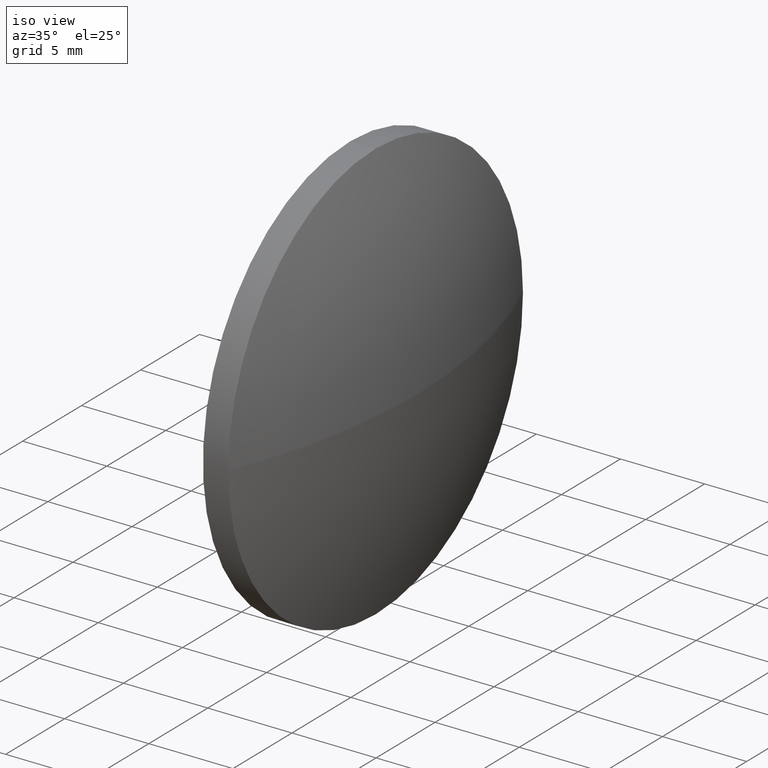
[diagram: clean part render]
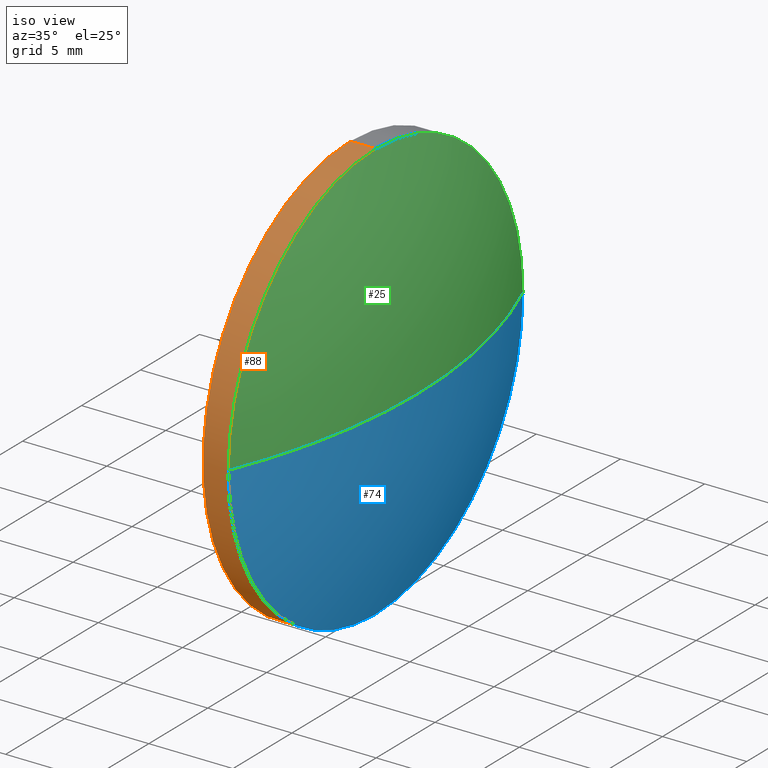
[diagram: same view with three faces highlighted in distinct colors, each labeled with its STEP entity id]
A machine part, iso view with three faces highlighted in distinct colors.
Their STEP definitions:

[orange] entity #88 — the highlighted cylindrical surface (partial cylindrical patch) has radius 12.5 mm, axis along (-1, -0, -0).
#1 = AXIS2_PLACEMENT_3D ( 'NONE', #147, #84, #47 ) ;
#3 = ORIENTED_EDGE ( 'NONE', *, *, #12, .F. ) ;
#4 = VECTOR ( 'NONE', #179, 1000.000000000000000 ) ;
#7 = CARTESIAN_POINT ( 'NONE',  ( 549.6628150025262600, 7.574565257038786500, -12.50000000000000000 ) ) ;
#10 = AXIS2_PLACEMENT_3D ( 'NONE', #67, #163, #97 ) ;
#12 = EDGE_CURVE ( 'NONE', #176, #143, #101, .T. ) ;
#15 = VERTEX_POINT ( 'NONE', #133 ) ;
#21 = EDGE_CURVE ( 'NONE', #27, #120, #156, .T. ) ;
#27 = VERTEX_POINT ( 'NONE', #62 ) ;
#32 = ORIENTED_EDGE ( 'NONE', *, *, #168, .F. ) ;
#33 = DIRECTION ( 'NONE',  ( 0.0000000000000000000, 0.0000000000000000000, 1.000000000000000000 ) ) ;
#41 = AXIS2_PLACEMENT_3D ( 'NONE', #99, #113, #33 ) ;
#46 = EDGE_CURVE ( 'NONE', #176, #27, #140, .T. ) ;
#47 = DIRECTION ( 'NONE',  ( 0.0000000000000000000, 0.0000000000000000000, 1.000000000000000000 ) ) ;
#57 = VECTOR ( 'NONE', #157, 1000.000000000000000 ) ;
#60 = CIRCLE ( 'NONE', #10, 12.50000000000000000 ) ;
#61 = LINE ( 'NONE', #138, #4 ) ;
#62 = CARTESIAN_POINT ( 'NONE',  ( 551.1628150025262600, -4.925434742961205500, -1.530808498934188000E-015 ) ) ;
#67 = CARTESIAN_POINT ( 'NONE',  ( 549.6628150025262600, 7.574565257038784700, 0.0000000000000000000 ) ) ;
#75 = ORIENTED_EDGE ( 'NONE', *, *, #46, .T. ) ;
#84 = DIRECTION ( 'NONE',  ( -1.000000000000000000, -0.0000000000000000000, -0.0000000000000000000 ) ) ;
#88 = ADVANCED_FACE ( 'NONE', ( #162 ), #149, .T. ) ;
#89 = EDGE_CURVE ( 'NONE', #120, #15, #61, .T. ) ;
#92 = DIRECTION ( 'NONE',  ( 0.0000000000000000000, 0.0000000000000000000, 1.000000000000000000 ) ) ;
#93 = CARTESIAN_POINT ( 'NONE',  ( 547.6337074240892700, 7.574565257038786500, -12.50000000000000000 ) ) ;
#97 = DIRECTION ( 'NONE',  ( 0.0000000000000000000, 0.0000000000000000000, 1.000000000000000000 ) ) ;
#99 = CARTESIAN_POINT ( 'NONE',  ( 547.6337074240892700, 7.574565257038784700, 0.0000000000000000000 ) ) ;
#101 = LINE ( 'NONE', #93, #57 ) ;
#105 = AXIS2_PLACEMENT_3D ( 'NONE', #134, #175, #92 ) ;
#113 = DIRECTION ( 'NONE',  ( -1.000000000000000000, -0.0000000000000000000, -0.0000000000000000000 ) ) ;
#120 = VERTEX_POINT ( 'NONE', #123 ) ;
#123 = CARTESIAN_POINT ( 'NONE',  ( 551.1628150025262600, 7.574565257038784700, 12.50000000000000000 ) ) ;
#127 = EDGE_LOOP ( 'NONE', ( #3, #75, #184, #135, #32 ) ) ;
#133 = CARTESIAN_POINT ( 'NONE',  ( 549.6628150025262600, 7.574565257038784700, 12.50000000000000000 ) ) ;
#134 = CARTESIAN_POINT ( 'NONE',  ( 551.1628150025262600, 7.574565257038784700, 0.0000000000000000000 ) ) ;
#135 = ORIENTED_EDGE ( 'NONE', *, *, #89, .T. ) ;
#138 = CARTESIAN_POINT ( 'NONE',  ( 547.6337074240892700, 7.574565257038784700, 12.50000000000000000 ) ) ;
#140 = CIRCLE ( 'NONE', #1, 12.50000000000000000 ) ;
#143 = VERTEX_POINT ( 'NONE', #7 ) ;
#147 = CARTESIAN_POINT ( 'NONE',  ( 551.1628150025262600, 7.574565257038784700, 0.0000000000000000000 ) ) ;
#148 = CARTESIAN_POINT ( 'NONE',  ( 551.1628150025262600, 7.574565257038786500, -12.50000000000000000 ) ) ;
#149 = CYLINDRICAL_SURFACE ( 'NONE', #41, 12.50000000000000000 ) ;
#156 = CIRCLE ( 'NONE', #105, 12.50000000000000000 ) ;
#157 = DIRECTION ( 'NONE',  ( -1.000000000000000000, -0.0000000000000000000, -0.0000000000000000000 ) ) ;
#162 = FACE_OUTER_BOUND ( 'NONE', #127, .T. ) ;
#163 = DIRECTION ( 'NONE',  ( -1.000000000000000000, -0.0000000000000000000, -0.0000000000000000000 ) ) ;
#168 = EDGE_CURVE ( 'NONE', #143, #15, #60, .T. ) ;
#175 = DIRECTION ( 'NONE',  ( -1.000000000000000000, -0.0000000000000000000, -0.0000000000000000000 ) ) ;
#176 = VERTEX_POINT ( 'NONE', #148 ) ;
#179 = DIRECTION ( 'NONE',  ( -1.000000000000000000, -0.0000000000000000000, -0.0000000000000000000 ) ) ;
#184 = ORIENTED_EDGE ( 'NONE', *, *, #21, .T. ) ;

[blue] entity #74 — the highlighted spherical surface has radius 32.5 mm.
#1 = AXIS2_PLACEMENT_3D ( 'NONE', #147, #84, #47 ) ;
#5 = ORIENTED_EDGE ( 'NONE', *, *, #106, .F. ) ;
#19 = ORIENTED_EDGE ( 'NONE', *, *, #26, .T. ) ;
#22 = CIRCLE ( 'NONE', #52, 12.50000000000000000 ) ;
#23 = CARTESIAN_POINT ( 'NONE',  ( 551.1628150025262600, 20.07456525703875600, 0.0000000000000000000 ) ) ;
#26 = EDGE_CURVE ( 'NONE', #153, #27, #54, .T. ) ;
#27 = VERTEX_POINT ( 'NONE', #62 ) ;
#34 = CARTESIAN_POINT ( 'NONE',  ( 521.1628150025261400, 7.574565257038766000, 0.0000000000000000000 ) ) ;
#35 = AXIS2_PLACEMENT_3D ( 'NONE', #34, #136, #49 ) ;
#37 = DIRECTION ( 'NONE',  ( 0.0000000000000000000, 1.000000000000000000, 1.224646799147353000E-016 ) ) ;
#40 = ORIENTED_EDGE ( 'NONE', *, *, #77, .F. ) ;
#45 = FACE_OUTER_BOUND ( 'NONE', #166, .T. ) ;
#46 = EDGE_CURVE ( 'NONE', #176, #27, #140, .T. ) ;
#47 = DIRECTION ( 'NONE',  ( 0.0000000000000000000, 0.0000000000000000000, 1.000000000000000000 ) ) ;
#49 = DIRECTION ( 'NONE',  ( 1.000000000000000000, 0.0000000000000000000, 0.0000000000000000000 ) ) ;
#52 = AXIS2_PLACEMENT_3D ( 'NONE', #100, #159, #80 ) ;
#54 = CIRCLE ( 'NONE', #83, 32.50000000000011400 ) ;
#59 = ORIENTED_EDGE ( 'NONE', *, *, #46, .F. ) ;
#62 = CARTESIAN_POINT ( 'NONE',  ( 551.1628150025262600, -4.925434742961205500, -1.530808498934188000E-015 ) ) ;
#63 = SPHERICAL_SURFACE ( 'NONE', #69, 32.50000000000011400 ) ;
#64 = CIRCLE ( 'NONE', #35, 32.50000000000008500 ) ;
#66 = DIRECTION ( 'NONE',  ( 0.0000000000000000000, 1.000000000000000000, 0.0000000000000000000 ) ) ;
#68 = CARTESIAN_POINT ( 'NONE',  ( 521.1628150025261400, 7.574565257038766000, 0.0000000000000000000 ) ) ;
#69 = AXIS2_PLACEMENT_3D ( 'NONE', #177, #125, #66 ) ;
#74 = ADVANCED_FACE ( 'NONE', ( #45 ), #63, .T. ) ;
#77 = EDGE_CURVE ( 'NONE', #116, #176, #22, .T. ) ;
#80 = DIRECTION ( 'NONE',  ( 0.0000000000000000000, 0.0000000000000000000, 1.000000000000000000 ) ) ;
#83 = AXIS2_PLACEMENT_3D ( 'NONE', #68, #160, #37 ) ;
#84 = DIRECTION ( 'NONE',  ( -1.000000000000000000, -0.0000000000000000000, -0.0000000000000000000 ) ) ;
#100 = CARTESIAN_POINT ( 'NONE',  ( 551.1628150025262600, 7.574565257038784700, 0.0000000000000000000 ) ) ;
#106 = EDGE_CURVE ( 'NONE', #153, #116, #64, .T. ) ;
#116 = VERTEX_POINT ( 'NONE', #23 ) ;
#125 = DIRECTION ( 'NONE',  ( -0.0000000000000000000, 0.0000000000000000000, -1.000000000000000000 ) ) ;
#136 = DIRECTION ( 'NONE',  ( -0.0000000000000000000, 0.0000000000000000000, 1.000000000000000000 ) ) ;
#140 = CIRCLE ( 'NONE', #1, 12.50000000000000000 ) ;
#147 = CARTESIAN_POINT ( 'NONE',  ( 551.1628150025262600, 7.574565257038784700, 0.0000000000000000000 ) ) ;
#148 = CARTESIAN_POINT ( 'NONE',  ( 551.1628150025262600, 7.574565257038786500, -12.50000000000000000 ) ) ;
#150 = CARTESIAN_POINT ( 'NONE',  ( 553.6628150025262600, 7.574565257038767800, 0.0000000000000000000 ) ) ;
#153 = VERTEX_POINT ( 'NONE', #150 ) ;
#159 = DIRECTION ( 'NONE',  ( -1.000000000000000000, -0.0000000000000000000, -0.0000000000000000000 ) ) ;
#160 = DIRECTION ( 'NONE',  ( 0.0000000000000000000, 1.224646799147353200E-016, -1.000000000000000000 ) ) ;
#166 = EDGE_LOOP ( 'NONE', ( #5, #19, #59, #40 ) ) ;
#176 = VERTEX_POINT ( 'NONE', #148 ) ;
#177 = CARTESIAN_POINT ( 'NONE',  ( 521.1628150025261400, 7.574565257038766000, 0.0000000000000000000 ) ) ;

[green] entity #25 — the highlighted spherical surface has radius 32.5 mm.
#16 = DIRECTION ( 'NONE',  ( 0.0000000000000000000, 1.000000000000000000, 0.0000000000000000000 ) ) ;
#18 = DIRECTION ( 'NONE',  ( -0.0000000000000000000, 0.0000000000000000000, -1.000000000000000000 ) ) ;
#20 = DIRECTION ( 'NONE',  ( -1.000000000000000000, -0.0000000000000000000, -0.0000000000000000000 ) ) ;
#21 = EDGE_CURVE ( 'NONE', #27, #120, #156, .T. ) ;
#23 = CARTESIAN_POINT ( 'NONE',  ( 551.1628150025262600, 20.07456525703875600, 0.0000000000000000000 ) ) ;
#25 = ADVANCED_FACE ( 'NONE', ( #128 ), #158, .T. ) ;
#26 = EDGE_CURVE ( 'NONE', #153, #27, #54, .T. ) ;
#27 = VERTEX_POINT ( 'NONE', #62 ) ;
#31 = EDGE_CURVE ( 'NONE', #120, #116, #90, .T. ) ;
#34 = CARTESIAN_POINT ( 'NONE',  ( 521.1628150025261400, 7.574565257038766000, 0.0000000000000000000 ) ) ;
#35 = AXIS2_PLACEMENT_3D ( 'NONE', #34, #136, #49 ) ;
#37 = DIRECTION ( 'NONE',  ( 0.0000000000000000000, 1.000000000000000000, 1.224646799147353000E-016 ) ) ;
#48 = ORIENTED_EDGE ( 'NONE', *, *, #21, .F. ) ;
#49 = DIRECTION ( 'NONE',  ( 1.000000000000000000, 0.0000000000000000000, 0.0000000000000000000 ) ) ;
#54 = CIRCLE ( 'NONE', #83, 32.50000000000011400 ) ;
#62 = CARTESIAN_POINT ( 'NONE',  ( 551.1628150025262600, -4.925434742961205500, -1.530808498934188000E-015 ) ) ;
#64 = CIRCLE ( 'NONE', #35, 32.50000000000008500 ) ;
#68 = CARTESIAN_POINT ( 'NONE',  ( 521.1628150025261400, 7.574565257038766000, 0.0000000000000000000 ) ) ;
#71 = AXIS2_PLACEMENT_3D ( 'NONE', #181, #20, #161 ) ;
#83 = AXIS2_PLACEMENT_3D ( 'NONE', #68, #160, #37 ) ;
#87 = ORIENTED_EDGE ( 'NONE', *, *, #26, .F. ) ;
#90 = CIRCLE ( 'NONE', #71, 12.50000000000000000 ) ;
#92 = DIRECTION ( 'NONE',  ( 0.0000000000000000000, 0.0000000000000000000, 1.000000000000000000 ) ) ;
#105 = AXIS2_PLACEMENT_3D ( 'NONE', #134, #175, #92 ) ;
#106 = EDGE_CURVE ( 'NONE', #153, #116, #64, .T. ) ;
#116 = VERTEX_POINT ( 'NONE', #23 ) ;
#119 = ORIENTED_EDGE ( 'NONE', *, *, #106, .T. ) ;
#120 = VERTEX_POINT ( 'NONE', #123 ) ;
#121 = CARTESIAN_POINT ( 'NONE',  ( 521.1628150025261400, 7.574565257038766000, 0.0000000000000000000 ) ) ;
#122 = ORIENTED_EDGE ( 'NONE', *, *, #31, .F. ) ;
#123 = CARTESIAN_POINT ( 'NONE',  ( 551.1628150025262600, 7.574565257038784700, 12.50000000000000000 ) ) ;
#128 = FACE_OUTER_BOUND ( 'NONE', #151, .T. ) ;
#134 = CARTESIAN_POINT ( 'NONE',  ( 551.1628150025262600, 7.574565257038784700, 0.0000000000000000000 ) ) ;
#136 = DIRECTION ( 'NONE',  ( -0.0000000000000000000, 0.0000000000000000000, 1.000000000000000000 ) ) ;
#150 = CARTESIAN_POINT ( 'NONE',  ( 553.6628150025262600, 7.574565257038767800, 0.0000000000000000000 ) ) ;
#151 = EDGE_LOOP ( 'NONE', ( #87, #119, #122, #48 ) ) ;
#153 = VERTEX_POINT ( 'NONE', #150 ) ;
#156 = CIRCLE ( 'NONE', #105, 12.50000000000000000 ) ;
#158 = SPHERICAL_SURFACE ( 'NONE', #182, 32.50000000000011400 ) ;
#160 = DIRECTION ( 'NONE',  ( 0.0000000000000000000, 1.224646799147353200E-016, -1.000000000000000000 ) ) ;
#161 = DIRECTION ( 'NONE',  ( 0.0000000000000000000, 0.0000000000000000000, 1.000000000000000000 ) ) ;
#175 = DIRECTION ( 'NONE',  ( -1.000000000000000000, -0.0000000000000000000, -0.0000000000000000000 ) ) ;
#181 = CARTESIAN_POINT ( 'NONE',  ( 551.1628150025262600, 7.574565257038784700, 0.0000000000000000000 ) ) ;
#182 = AXIS2_PLACEMENT_3D ( 'NONE', #121, #18, #16 ) ;